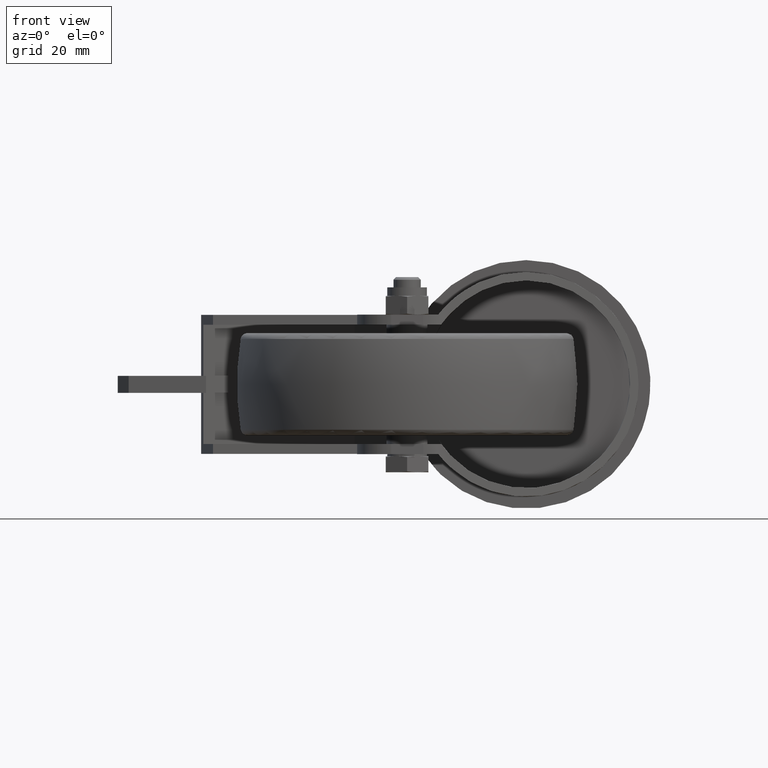
[diagram: clean part render]
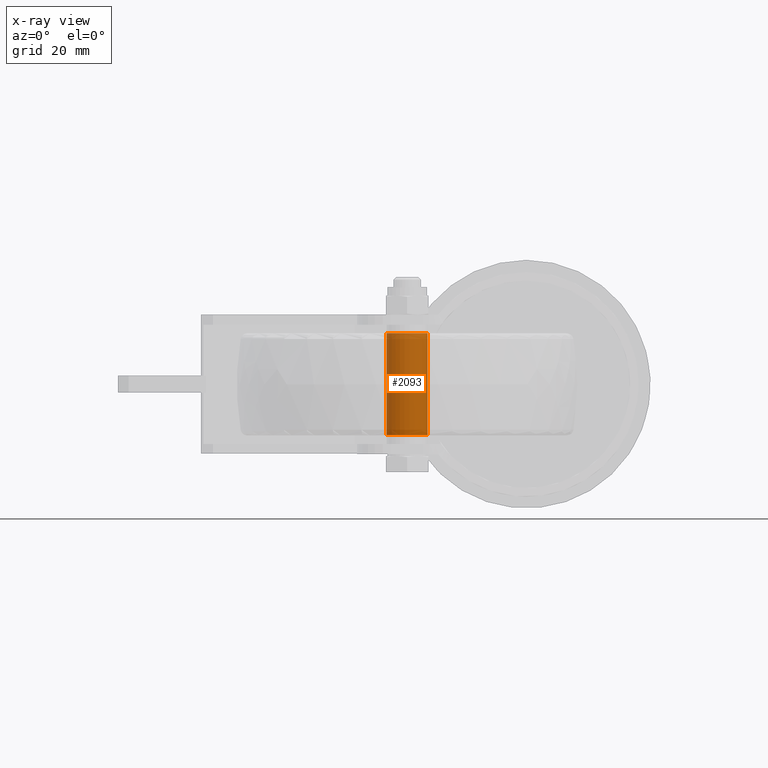
[diagram: x-ray — body ghosted, one internal face saturated and labeled with its STEP entity id]
A machine part, front view, then the same camera in x-ray: the body is ghosted and one INTERNAL B-rep face — a face not visible from any outside direction — is saturated and labeled: STEP entity #2093.
In plain terms, the highlighted cylindrical surface (bore or boss wall) has radius 6 mm, axis along (0, 0, 1).
Its self-contained STEP definition (entity closure, byte-faithful):
#345=FACE_OUTER_BOUND('',#490,.T.);
#490=EDGE_LOOP('',(#1874,#1875,#1876,#1877));
#583=CIRCLE('',#2408,6.);
#584=CIRCLE('',#2409,6.);
#753=LINE('',#3737,#886);
#886=VECTOR('',#2966,6.);
#1050=VERTEX_POINT('',#3734);
#1051=VERTEX_POINT('',#3736);
#1328=EDGE_CURVE('',#1050,#1050,#583,.T.);
#1329=EDGE_CURVE('',#1050,#1051,#753,.T.);
#1330=EDGE_CURVE('',#1051,#1051,#584,.T.);
#1874=ORIENTED_EDGE('',*,*,#1328,.F.);
#1875=ORIENTED_EDGE('',*,*,#1329,.T.);
#1876=ORIENTED_EDGE('',*,*,#1330,.T.);
#1877=ORIENTED_EDGE('',*,*,#1329,.F.);
#1985=CYLINDRICAL_SURFACE('',#2407,6.);
#2093=ADVANCED_FACE('',(#345),#1985,.F.);
#2407=AXIS2_PLACEMENT_3D('',#3733,#2962,#2963);
#2408=AXIS2_PLACEMENT_3D('',#3735,#2964,#2965);
#2409=AXIS2_PLACEMENT_3D('',#3738,#2967,#2968);
#2962=DIRECTION('center_axis',(0.,0.,1.));
#2963=DIRECTION('ref_axis',(1.,0.,0.));
#2964=DIRECTION('center_axis',(0.,0.,1.));
#2965=DIRECTION('ref_axis',(1.,0.,0.));
#2966=DIRECTION('',(0.,0.,1.));
#2967=DIRECTION('center_axis',(0.,0.,1.));
#2968=DIRECTION('ref_axis',(1.,0.,0.));
#3733=CARTESIAN_POINT('Origin',(0.,0.,15.));
#3734=CARTESIAN_POINT('',(-6.,-7.34788079488412E-16,-15.));
#3735=CARTESIAN_POINT('Origin',(0.,0.,-15.));
#3736=CARTESIAN_POINT('',(-6.,-7.34788079488412E-16,15.));
#3737=CARTESIAN_POINT('',(-6.,-7.34788079488412E-16,15.));
#3738=CARTESIAN_POINT('Origin',(0.,0.,15.));